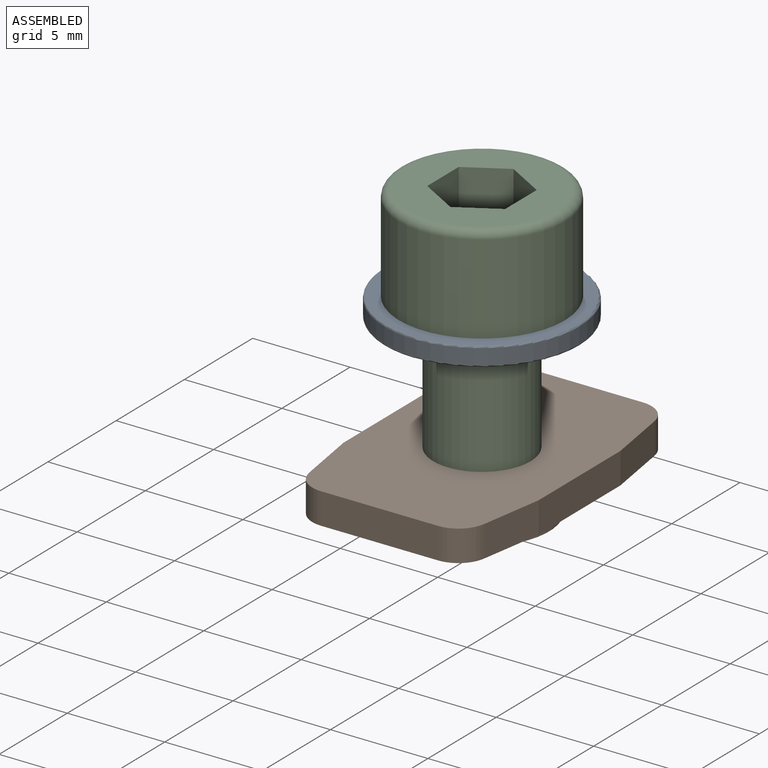
[diagram: assembled view]
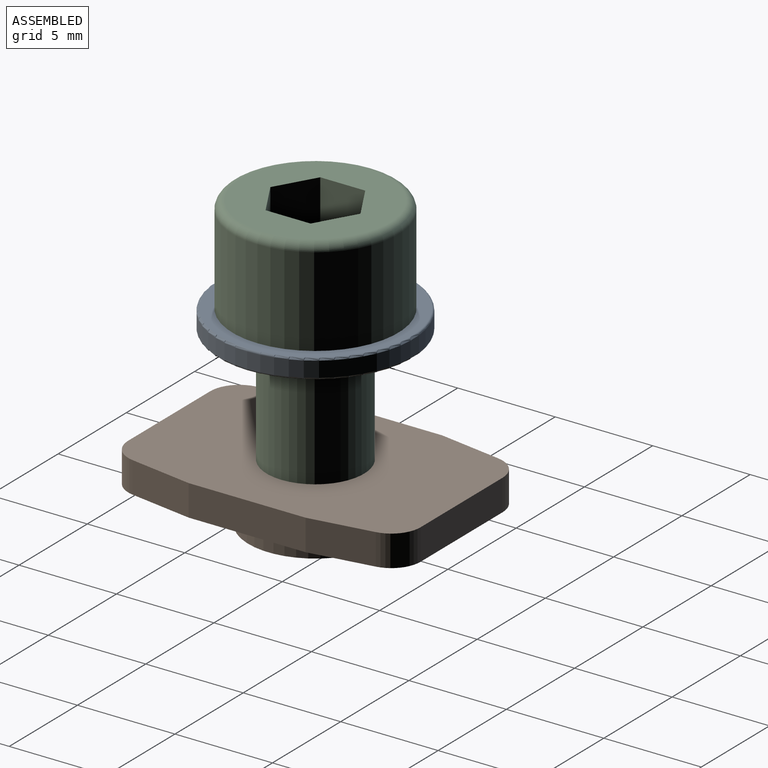
[diagram: assembled view, second angle]
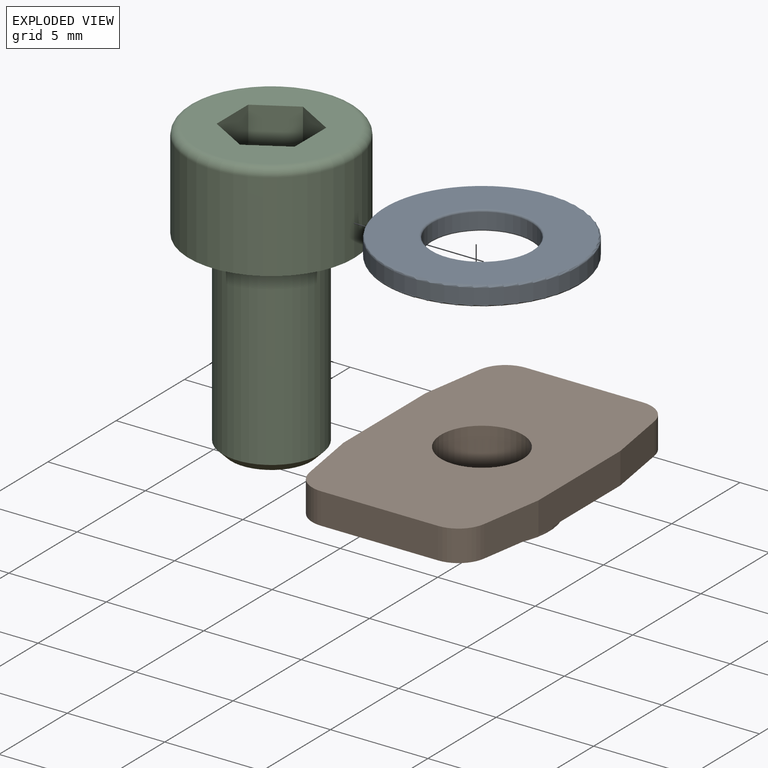
[diagram: exploded view]
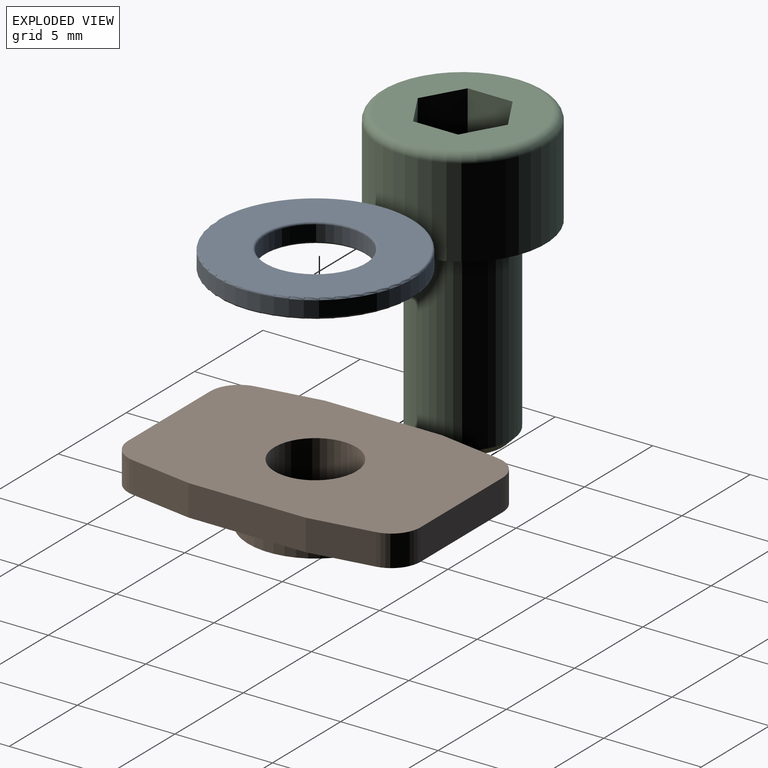
[diagram: exploded view, second angle]
ASSEMBLY  parts=3 mates=2
PART A: 8 faces, bbox 1x10.8x10.8 mm
  f0: cylinder r=2.55mm len=5.1mm, axis (-1,0,0), area 12.8mm2, adj f4,f6
  f1: cylinder r=5mm len=10mm, axis (-1,0,0), area 25.1mm2, adj f5,f7
  f2: plane 9.8x9.8mm, normal (1,0,0), area 53.4mm2, adj f6,f7
  f3: plane 9.8x9.8mm, normal (-1,0,0), area 53.4mm2, adj f4,f5
  f4: torus R=2.65mm, axis (1,0,0), area 2.6mm2, adj f0,f3
  f5: torus R=4.9mm, axis (1,0,0), area 4.9mm2, adj f1,f3
  f6: torus R=2.65mm, axis (1,0,0), area 2.6mm2, adj f0,f2
  f7: torus R=4.9mm, axis (1,0,0), area 4.9mm2, adj f1,f2
PART B: 17 faces, bbox 15x10x3 mm
  f0: cylinder r=2.1mm len=4.2mm, axis (0,0,1), area 39.6mm2, adj f15,f16
  f1: cylinder r=3.45mm len=6.9mm, axis (0,0,-1), area 30.3mm2, adj f2,f16
  f2: plane 15x10mm, normal (0,0,1), area 104.8mm2, adj f1,f3,f4,f5,f6,f7,f8,f9
  f3: cylinder r=1.5mm len=1.6mm, axis (0,0,-1), area 3.4mm2, adj f2,f4,f14,f15
  f4: plane 3.24x1.6mm, normal (0.16,0.99,0), area 5.2mm2, adj f2,f3,f5,f15
  f5: plane 6x1.6mm, normal (0,1,0), area 9.6mm2, adj f2,f4,f6,f15
  f6: plane 3.24x1.6mm, normal (-0.16,0.99,0), area 5.2mm2, adj f2,f5,f7,f15
  f7: cylinder r=1.5mm len=1.6mm, axis (0,0,-1), area 3.4mm2, adj f2,f6,f8,f15
  f8: plane 6x1.6mm, normal (-1,0,0), area 9.6mm2, adj f2,f7,f9,f15
  f9: cylinder r=1.5mm len=1.6mm, axis (0,0,-1), area 3.4mm2, adj f2,f8,f10,f15
  f10: plane 3.24x1.6mm, normal (-0.16,-0.99,0), area 5.2mm2, adj f2,f9,f11,f15
  f11: plane 6x1.6mm, normal (0,-1,0), area 9.6mm2, adj f2,f10,f12,f15
  f12: plane 3.24x1.6mm, normal (0.16,-0.99,0), area 5.2mm2, adj f2,f11,f13,f15
  f13: cylinder r=1.5mm len=1.6mm, axis (0,0,-1), area 3.4mm2, adj f2,f12,f14,f15
  f14: plane 6x1.6mm, normal (1,0,0), area 9.6mm2, adj f2,f3,f13,f15
  f15: plane 15x10mm, normal (0,0,-1), area 128.3mm2, adj f0,f3,f4,f5,f6,f7,f8,f9
  f16: plane 6.9x6.9mm, normal (0,0,1), area 23.5mm2, adj f0,f1
PART C: 14 faces, bbox 15x9.2x9.2 mm
  f0: cylinder r=4.25mm len=8.5mm, axis (1,0,0), area 122.2mm2, adj f1,f13
  f1: torus R=3.82mm, axis (1,0,0), area 17.2mm2, adj f0,f12
  f2: cone r=2.28mm half-angle=45deg, axis (-1,0,0), area 8.8mm2, adj f3,f11
  f3: cylinder r=2.5mm len=9.57mm, axis (1,0,0), area 150.3mm2, adj f2,f13
  f4: cone r=1.15mm half-angle=60deg, axis (-1,0,0), area 16mm2, adj f5,f6,f7,f8,f9,f10
  f5: plane 2.76x2mm, normal (0,0.5,0.87), area 6mm2, adj f4,f6,f10,f12
  f6: plane 2.76x2.31mm, normal (0,1,0), area 6mm2, adj f4,f5,f7,f12
  f7: plane 2.76x2mm, normal (0,0.5,-0.87), area 6mm2, adj f4,f6,f8,f12
  f8: plane 2.76x2mm, normal (0,-0.5,-0.87), area 6mm2, adj f4,f7,f9,f12
  f9: plane 2.71x2.31mm, normal (0,-1,0), area 6mm2, adj f4,f8,f10,f12
  f10: plane 2.76x2mm, normal (0,-0.5,0.87), area 6mm2, adj f4,f5,f9,f12
  f11: plane 4.13x4.13mm, normal (1,0,0), area 13.4mm2, adj f2
  f12: plane 7.65x7.65mm, normal (-1,0,0), area 32.1mm2, adj f1,f5,f6,f7,f8,f9,f10
  f13: plane 8.5x8.5mm, normal (1,0,0), area 37.1mm2, adj f0,f3
PLACE A rot(axis=(0,-1,0),90deg) t=(-4.58,320.5,12.2)mm
PLACE B rot(axis=(-0.71,0.71,0),180deg) t=(-4.58,320.5,16.2)mm
PLACE C rot(axis=(0.58,0.58,-0.58),120deg) t=(-4.58,320.5,23.2)mm
MATE fastened A.f6 <-> C.f3  axis (0,0,1) through (-4.58,320.5,23.2)mm
MATE fastened B.f0 <-> C.f3  axis (0,0,-1) through (-4.58,320.5,13.2)mm
